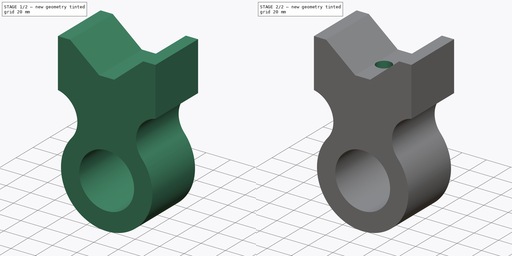
[diagram: build sequence overview — one tinted view per stage of 2, left to right]
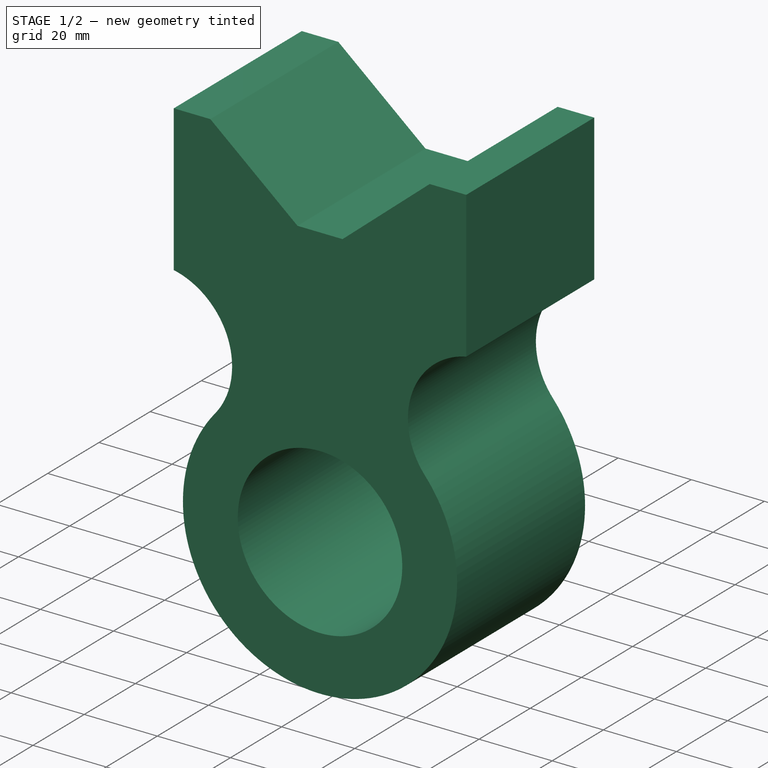
[diagram: stage 1 of 2 — iso view after this stage's code; geometry added in this stage tinted green]
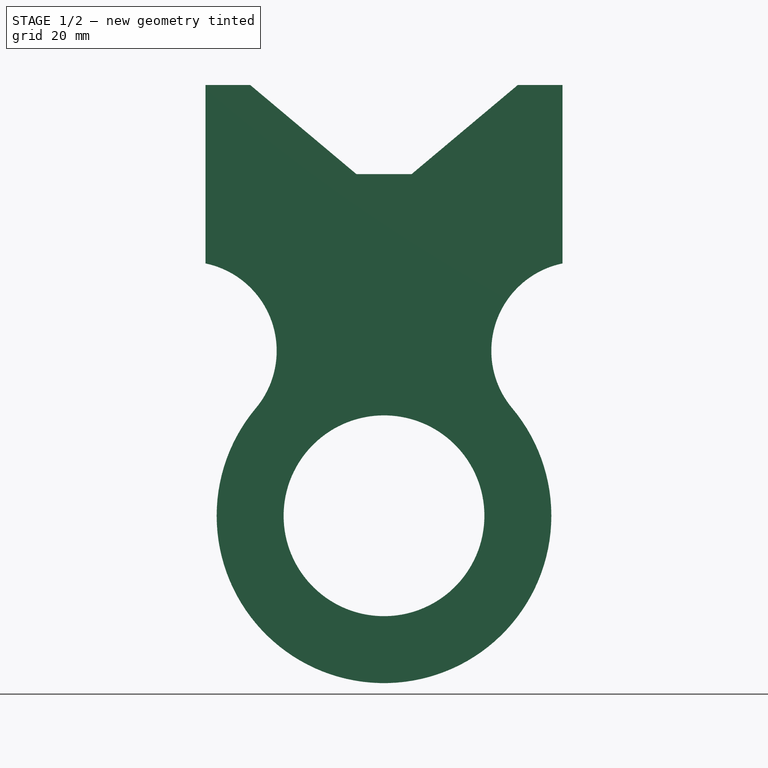
[diagram: stage 1 of 2 — front view after this stage's code; geometry added in this stage tinted green]
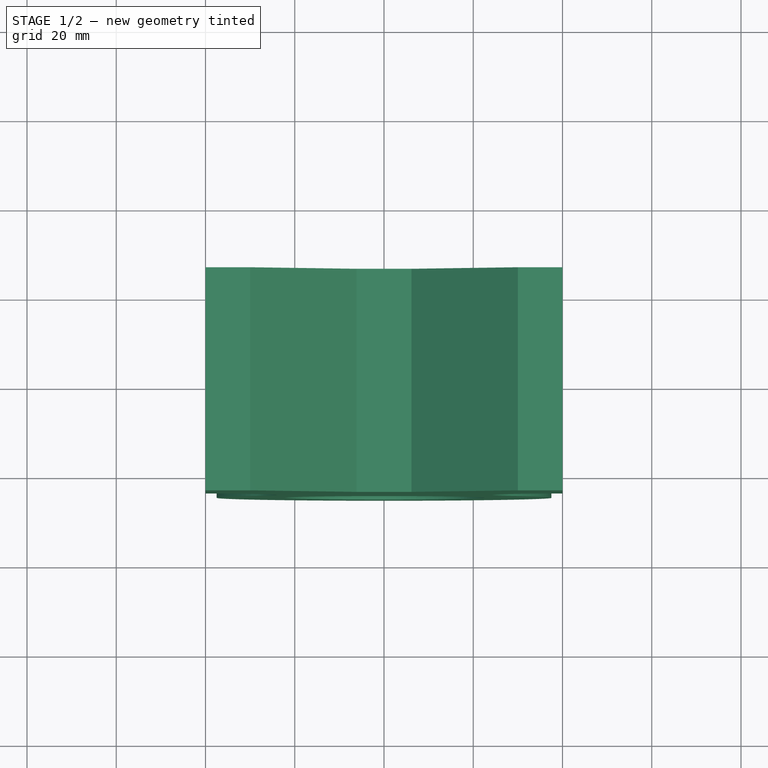
[diagram: stage 1 of 2 — top view after this stage's code; geometry added in this stage tinted green]
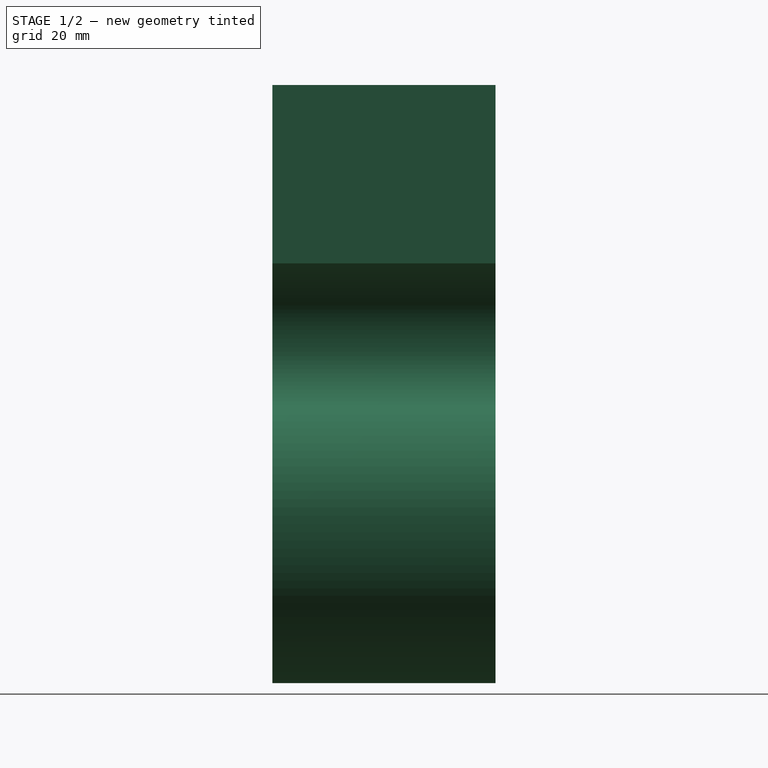
[diagram: stage 1 of 2 — right view after this stage's code; geometry added in this stage tinted green]
FCSTD DOCUMENT  (FreeCAD 0.18R4 (GitTag))
Label: Object3
License: All rights reserved
LicenseURL: http://en.wikipedia.org/wiki/All_rights_reserved
objects: Sketcher::SketchObject×2, PartDesign::Pad×1, PartDesign::Pocket×1, PartDesign::Body×1
note: 7 computed .brp shape members not serialized (recipe doc carries the construction recipe); baked Part::Feature solids carry a one-line shape summary decoded from their .brp

FEATURE [Sketcher::SketchObject] Sketch
  MapMode = 5
  Placement = pos=(0,0,0) rot=(1,0,0;1.5708rad)
  Support = -> [XZ_Plane]
  sketch-geometry (11):
    g0: Circle CenterX=0 CenterY=0 CenterZ=0 NormalX=0 NormalY=0 NormalZ=1 AngleXU=0 Radius=22.5
    g1: ArcOfCircle CenterX=0 CenterY=0 CenterZ=0 NormalX=0 NormalY=0 NormalZ=1 AngleXU=0 Radius=37.5 StartAngle=2.44346 EndAngle=6.98132
    g2: ArcOfCircle CenterX=-44.0476 CenterY=36.9603 CenterZ=0 NormalX=0 NormalY=0 NormalZ=1 AngleXU=0 Radius=20 StartAngle=5.58505 EndAngle=7.6502
    g3: ArcOfCircle CenterX=44.0476 CenterY=36.9603 CenterZ=0 NormalX=0 NormalY=0 NormalZ=1 AngleXU=0 Radius=20 StartAngle=1.77458 EndAngle=3.83972
    g4: LineSegment StartX=-40 StartY=56.5464 StartZ=0 EndX=-40 EndY=96.5464 EndZ=0
    g5: LineSegment StartX=40 StartY=56.5464 StartZ=0 EndX=40 EndY=96.5464 EndZ=0
    g6: LineSegment StartX=-40 StartY=96.5464 StartZ=0 EndX=-30 EndY=96.5464 EndZ=0
    g7: LineSegment StartX=-30 StartY=96.5464 StartZ=0 EndX=-6.16493 EndY=76.5464 EndZ=0
    g8: LineSegment StartX=-6.16493 StartY=76.5464 StartZ=0 EndX=6.16493 EndY=76.5464 EndZ=0
    g9: LineSegment StartX=6.16493 StartY=76.5464 StartZ=0 EndX=30 EndY=96.5464 EndZ=0
    g10: LineSegment StartX=30 StartY=96.5464 StartZ=0 EndX=40 EndY=96.5464 EndZ=0
  constraints (30):
    c: Radius(g0) = 22.5
    c: Coincident(g0,g-1)
    c: Coincident(g1,g0)
    c: Radius(g1) = 37.5
    c: Symmetric(g1,g1,g-2)
    c: DistanceY(g-1,g1) = 24.1045
    c: Tangent(g2,g1) = 1.5708
    c: Radius(g2) = 20
    c: DistanceX(g2,g-1) = 40
    c: Coincident(g3,g1)
    c: Radius(g3) = 20
    c: Symmetric(g3,g2,g-2)
    c: Vertical(g4)
    c: Coincident(g4,g2)
    c: DistanceY(g4,g4) = 40
    c: Vertical(g5)
    c: Coincident(g5,g3)
    c: DistanceY(g5,g5) = 40
    c: Horizontal(g6)
    c: Coincident(g6,g7)
    c: Coincident(g7,g8)
    c: Coincident(g8,g9)
    c: Coincident(g9,g10)
    c: Symmetric(g6,g9,g-2)
    c: Symmetric(g8,g7,g-2)
    c: Symmetric(g10,g6,g-2)
    c: Coincident(g10,g5)
    c: Angle(g9,g7) = 1.74533
    c: DistanceX(g6,g6) = 10
    c: DistanceY(g8,g9) = 20
FEATURE [PartDesign::Pad] Pad
  Length = 50
  Length2 = 100
  Midplane = true
  Placement = pos=(0,0,0) rot=(1,0,0;1.5708rad)
  Profile = -> Sketch
  Type = 0
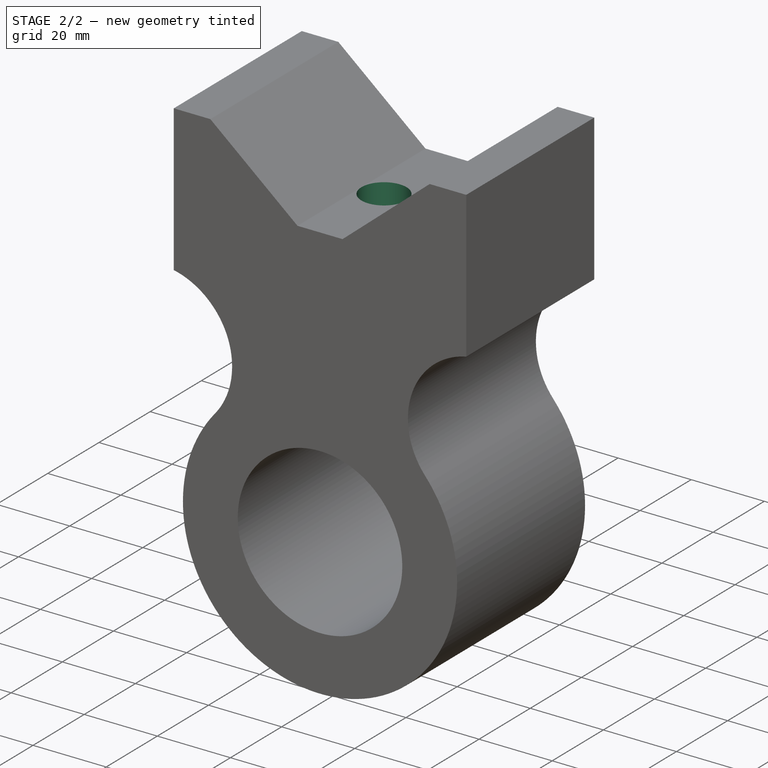
[diagram: stage 2 of 2 — iso view after this stage's code; geometry added in this stage tinted green]
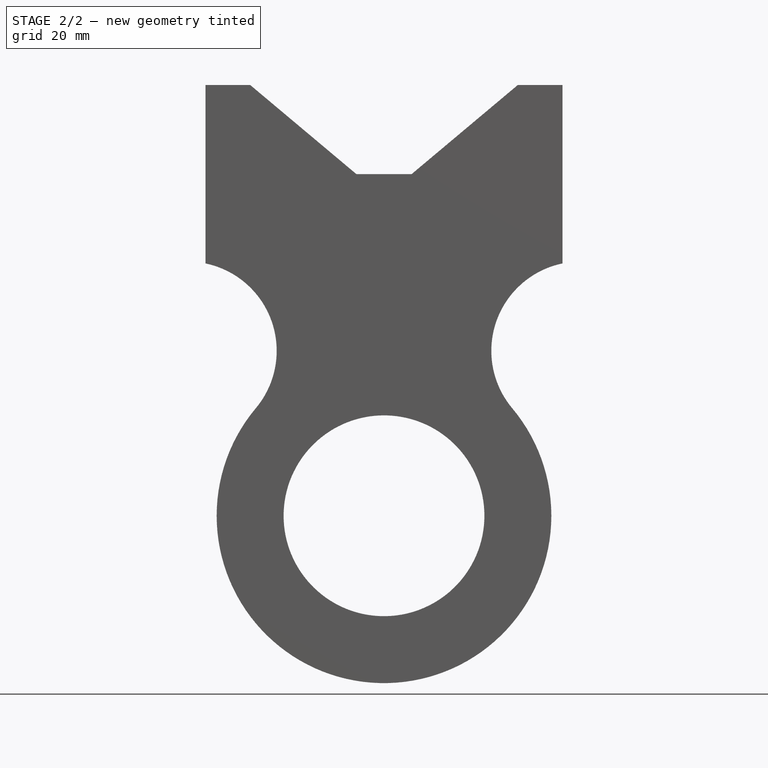
[diagram: stage 2 of 2 — front view after this stage's code; geometry added in this stage tinted green]
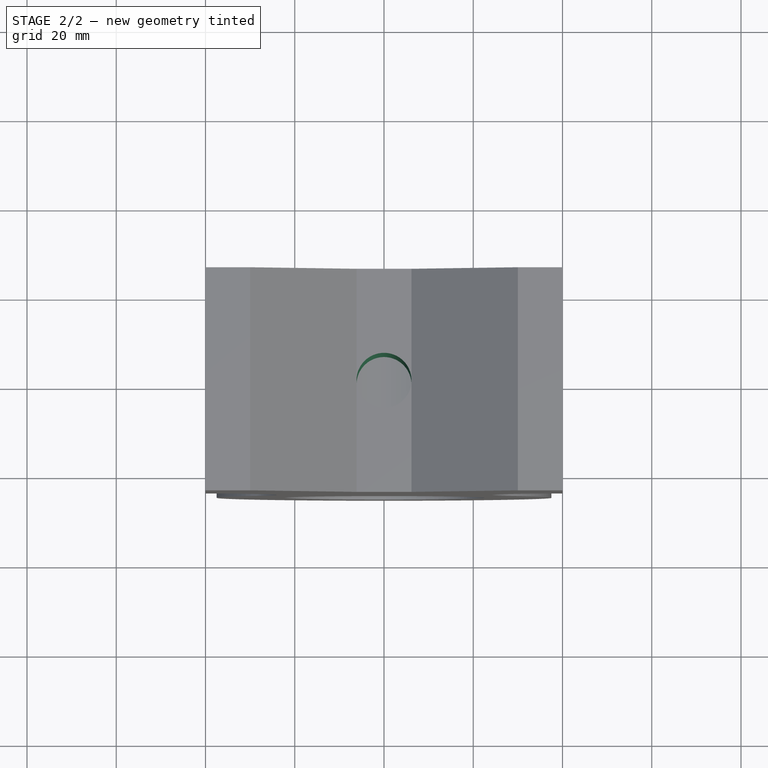
[diagram: stage 2 of 2 — top view after this stage's code; geometry added in this stage tinted green]
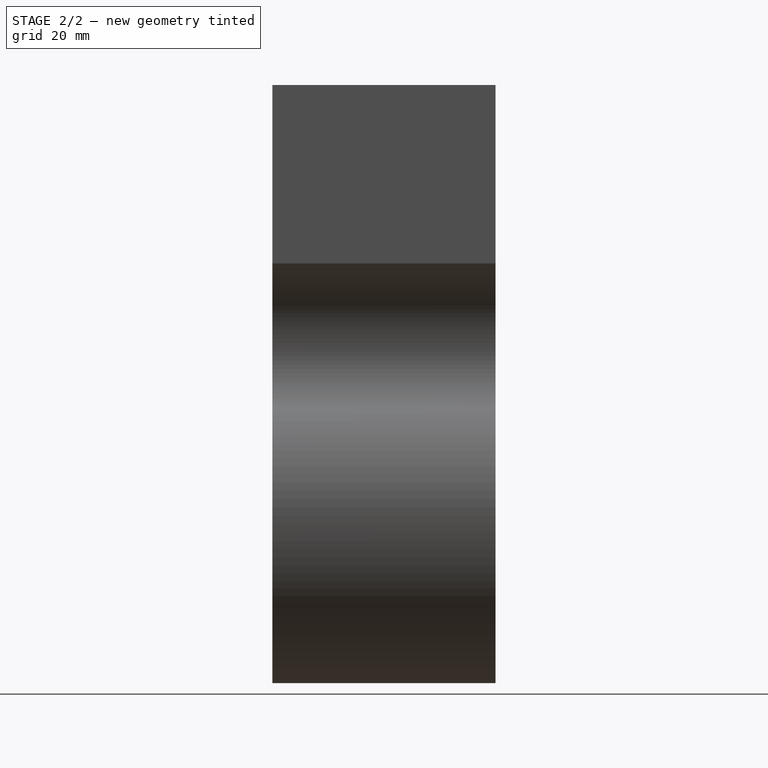
[diagram: stage 2 of 2 — right view after this stage's code; geometry added in this stage tinted green]
FEATURE [Sketcher::SketchObject] Sketch001
  MapMode = 5
  Support = -> [XY_Plane]
  sketch-geometry (1):
    g0: Circle CenterX=0 CenterY=0 CenterZ=0 NormalX=0 NormalY=0 NormalZ=1 AngleXU=0 Radius=6.16493
  constraints (2):
    c: Radius(g0) = 6.16493
    c: Coincident(g0,g-1)
FEATURE [PartDesign::Pocket] Pocket
  BaseFeature = -> Pad
  Length = 5
  Length2 = 100
  Placement = pos=(0,0,0) rot=(1,0,0;1.5708rad)
  Profile = -> Sketch001
  Reversed = true
  Type = 1
FEATURE [PartDesign::Body] Body
  Group = -> [Sketch,Pad,Sketch001,Pocket]
  Origin = -> Origin
  Tip = -> Pocket
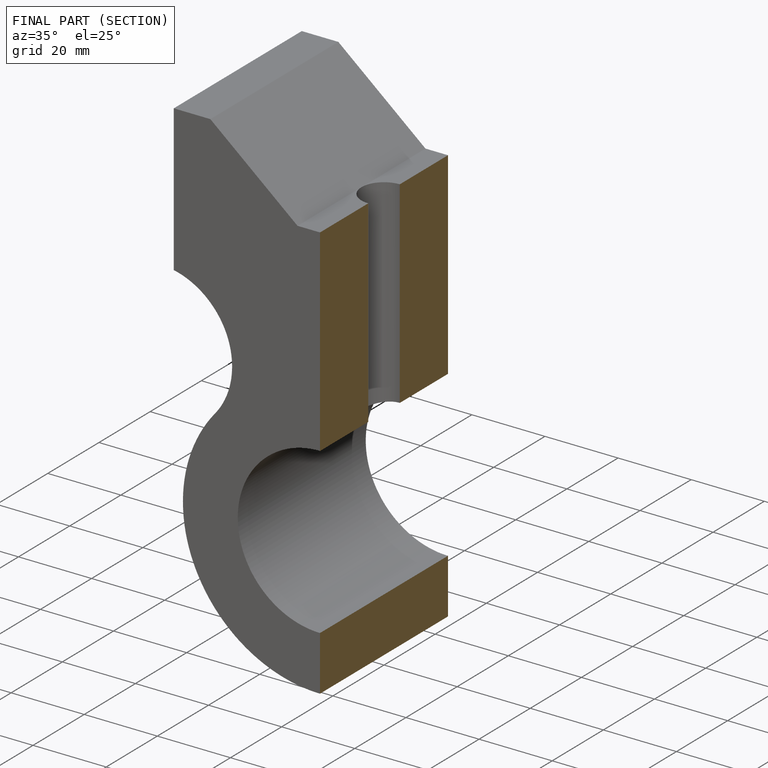
[diagram: finished part — half-section view (interior)]
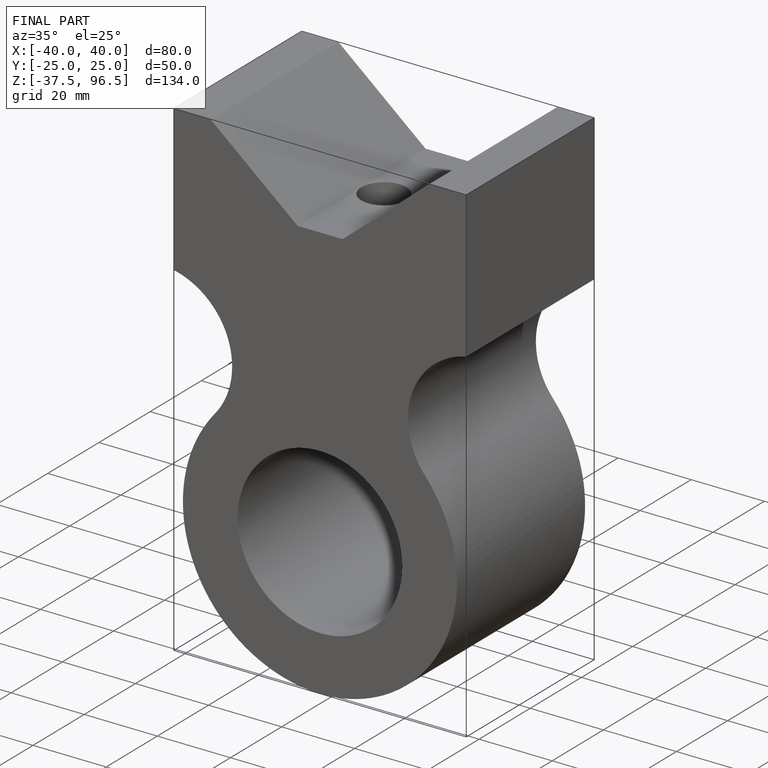
[diagram: finished part — iso view with bounding-box wireframe]
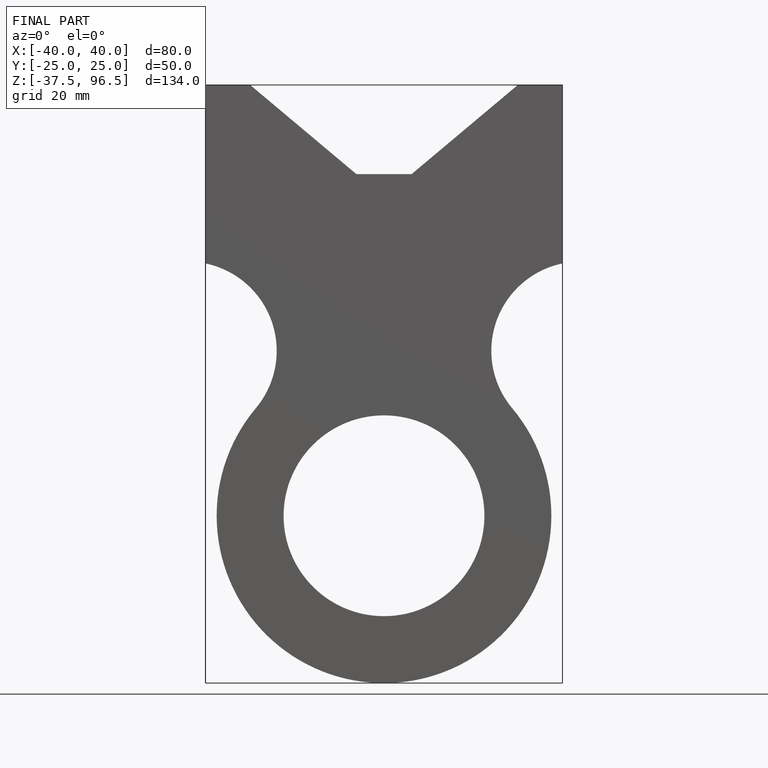
[diagram: finished part — front view with bounding-box wireframe]
